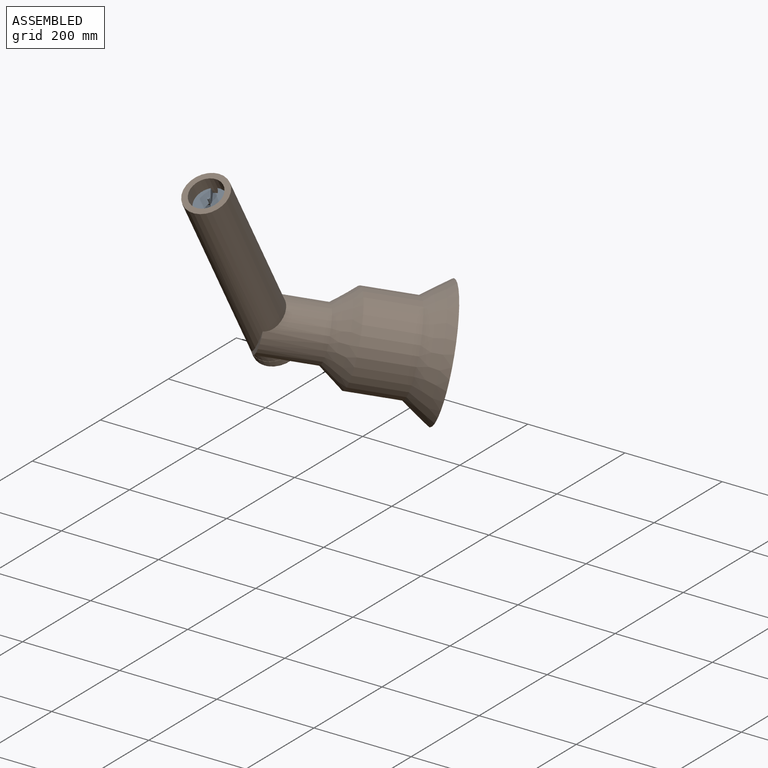
[diagram: assembled view]
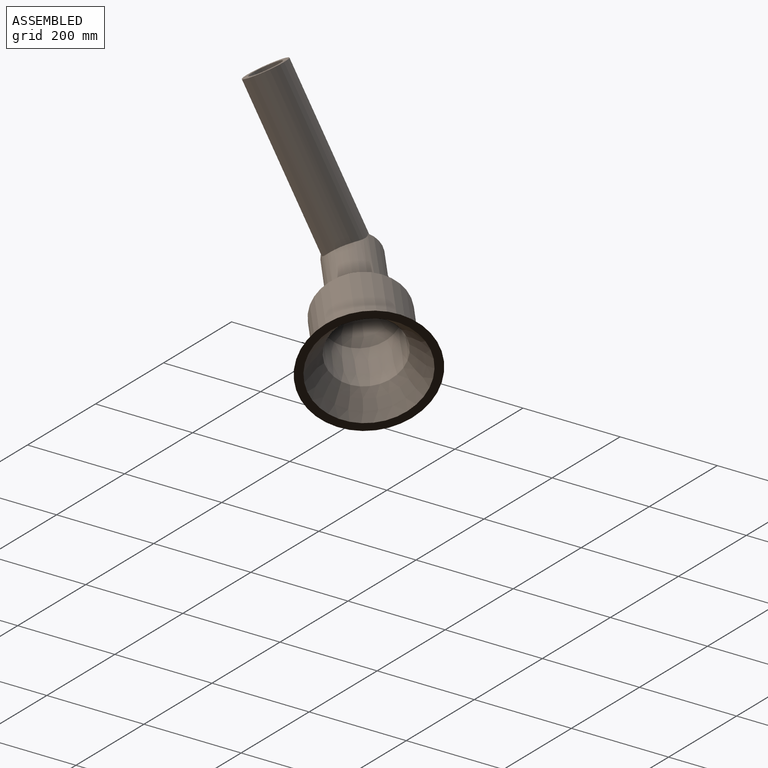
[diagram: assembled view, second angle]
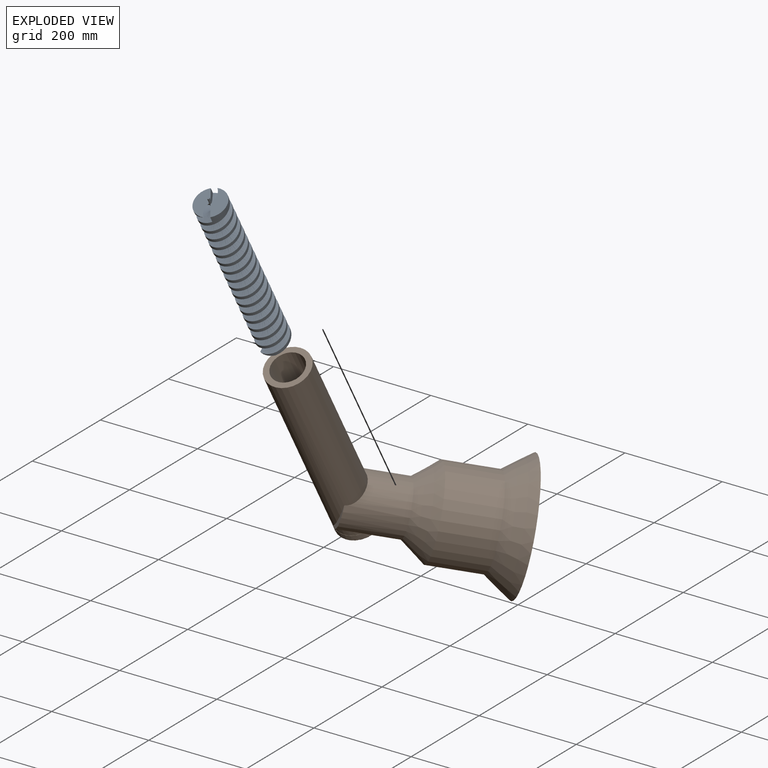
[diagram: exploded view]
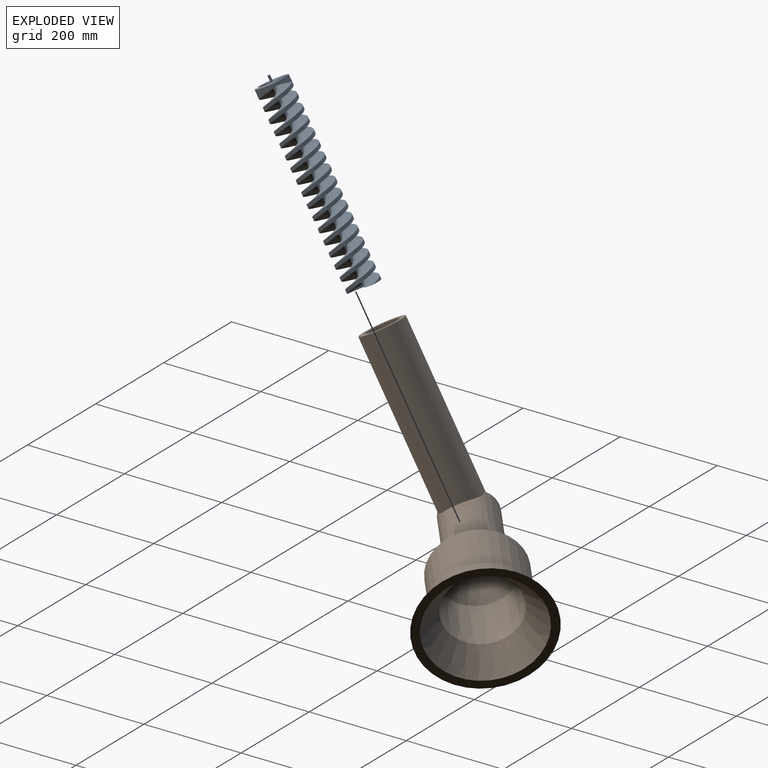
[diagram: exploded view, second angle]
ASSEMBLY  parts=2 mates=2
PART A: 16 faces, bbox 64.4x367.3x249 mm
  f0: cylinder r=2.48mm len=332.43mm, axis (0,-0.87,0.5), area 1956.8mm2, adj f2,f5,f7,f8,f13,f14
  f1: cylinder r=31.75mm len=361.71mm, axis (0,0.87,-0.5), area 10641.2mm2, adj f2,f4,f5,f7,f8
  f2: plane 29.27x11.06mm, normal (0,0.5,0.87), area 303.2mm2, adj f0,f1,f7,f8
  f3: cylinder r=2.48mm len=332.43mm, axis (0,-0.87,0.5), area 1956.8mm2, adj f4,f5,f6,f8,f12,f15
  f4: bspline ~340.35x226.96mm, area 29634.4mm2, adj f1,f3,f5,f6,f8
  f5: plane 63.5x45.44mm, normal (0,0.87,-0.5), area 1233.7mm2, adj f0,f1,f3,f4,f6,f7,f11,f13
  f6: plane 28.86x4.11mm, normal (0,-0.5,-0.87), area 68.5mm2, adj f3,f4,f5
  f7: bspline ~344.58x226.96mm, area 28855.2mm2, adj f0,f1,f2,f5
  f8: plane 63.5x54.99mm, normal (0,-0.87,0.5), area 2524.8mm2, adj f0,f1,f2,f3,f4,f9,f11,f12
  f9: cylinder r=2.41mm len=13.4mm, axis (0,0.87,-0.5), area 191.9mm2, adj f8,f10
  f10: plane 4.81x4.17mm, normal (0,-0.87,0.5), area 18.2mm2, adj f9
  f11: cylinder r=31.75mm len=361.71mm, axis (0,0.87,-0.5), area 10641.2mm2, adj f5,f8,f12,f13,f15
  f12: plane 29.27x11.06mm, normal (0,-0.5,-0.87), area 303.2mm2, adj f3,f8,f11,f15
  f13: bspline ~344.58x226.96mm, area 29634.4mm2, adj f0,f5,f8,f11,f14
  f14: plane 28.86x4.11mm, normal (0,0.5,0.87), area 68.5mm2, adj f0,f5,f13
  f15: bspline ~328.74x226.96mm, area 28855.2mm2, adj f3,f5,f11,f12
PART B: 23 faces, bbox 255x520.8x462.5 mm
  f0: cone r=54.58mm half-angle=37.6deg, axis (0,1,0), area 26579.6mm2, adj f1,f7
  f1: cylinder r=90.25mm len=180.51mm, axis (0,-1,0), area 58805.8mm2, adj f0,f2
  f2: cone r=90.25mm half-angle=35deg, axis (0,1,0), area 44457.5mm2, adj f1,f3
  f3: plane 255.02x255.02mm, normal (0,1,0), area 12351.8mm2, adj f2,f4
  f4: cone r=73.77mm half-angle=35deg, axis (0,1,0), area 37727.6mm2, adj f3,f5
  f5: cone r=71.73mm half-angle=1.1deg, axis (0,1,0), area 47410mm2, adj f4,f6
  f6: cone r=71.73mm half-angle=36deg, axis (0,1,0), area 19732.4mm2, adj f5,f8
  f7: cylinder r=54.58mm len=114.3mm, axis (0,-1,0), area 30472.6mm2, adj f0,f11,f12,f14,f15,f19,f20,f21
  f8: cylinder r=38.1mm len=114.3mm, axis (0,-1,0), area 20125.2mm2, adj f6,f9,f10,f16,f17,f18
  f9: cylinder r=32.38mm len=367.07mm, axis (0,0.5,-0.87), area 71429.8mm2, adj f8,f13,f16
  f10: cylinder r=32.38mm len=64.77mm, axis (0,0.5,-0.87), area 2817.6mm2, adj f8,f17
  f11: cylinder r=44.05mm len=9.66mm, axis (0,0.5,-0.87), area 23.6mm2, adj f7,f12,f21
  f12: cylinder r=44.05mm len=396mm, axis (0,0.5,-0.87), area 98889.2mm2, adj f7,f11,f13,f14,f15,f21
  f13: plane 88.1x76.29mm, normal (0,-0.5,0.87), area 2800.6mm2, adj f9,f12
  f14: plane 82.7x33.52mm, normal (0,-1,0), area 806.2mm2, adj f7,f12
  f15: plane 82.7x33.52mm, normal (0,-1,0), area 806.2mm2, adj f7,f12
  f16: plane 76.2x58.45mm, normal (0,1,0), area 889.9mm2, adj f8,f9
  f17: plane 66.54x64.77mm, normal (0,-0.5,0.87), area 4050.3mm2, adj f8,f10,f18
  f18: cylinder r=44.45mm len=61.03mm, axis (0,-0.5,0.87), area 829.3mm2, adj f8,f17
  f19: plane 63.76x46.95mm, normal (0,0.5,-0.87), area 2586.6mm2, adj f7,f22
  f20: cylinder r=44.45mm len=88.9mm, axis (0,-0.5,0.87), area 2211.5mm2, adj f7,f21,f22
  f21: plane 88.9x47.96mm, normal (0,-0.5,0.87), area 64.5mm2, adj f7,f11,f12,f20
  f22: bspline ~88.89x65.9mm, area 3114.1mm2, adj f7,f19,f20
PLACE A rot(axis=(-0.41,0.64,-0.64),66.1deg) t=(-29.03,13.26,-65.5)mm
PLACE B rot(axis=(0,0.5,-0.87),59.6deg) t=(-29.03,13.26,-65.5)mm
MATE cylindrical B.f9 <-> A.f0  axis (0,-0.5,0.87) through (-29.03,13.26,-65.5)mm
MATE revolute A.f0 <-> B.f9  axis (0,0.5,-0.87) through (-29.03,13.26,-65.5)mm
